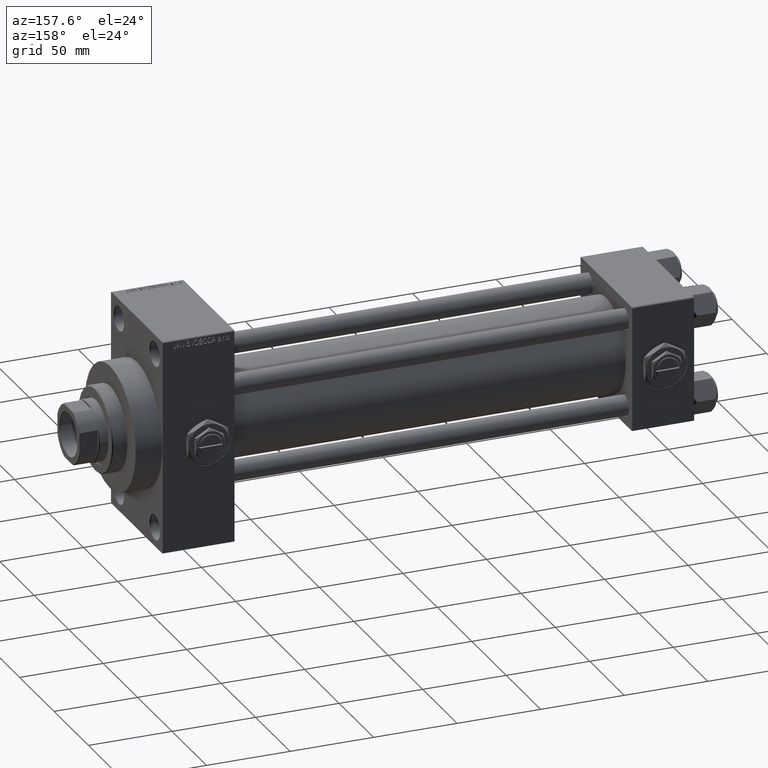
[diagram: clean part render]
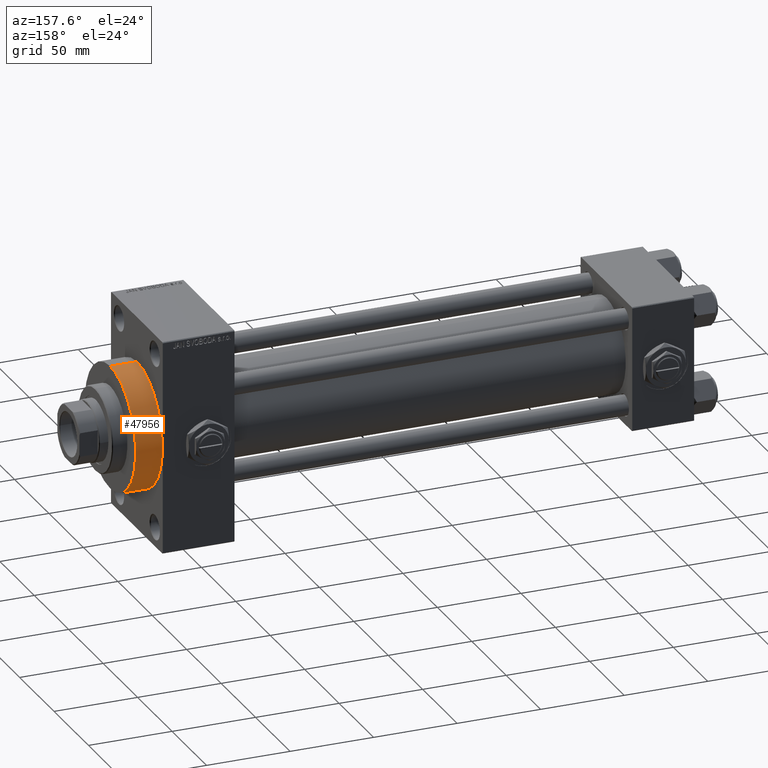
[diagram: same view with one face highlighted and labeled with its STEP entity id]
A machine part, auxiliary view. The second image highlights one B-rep face of the part: STEP entity #47956.
In plain terms, the highlighted cylindrical surface (partial cylindrical patch) has radius 37 mm, axis along (-1, -0, -0).
Its self-contained STEP definition (entity closure, byte-faithful):
#623 = CARTESIAN_POINT ( 'NONE',  ( 317.9999999999999432, 0.000000000000000000, 37.00000000000000000 ) ) ;
#669 = DIRECTION ( 'NONE',  ( 0.000000000000000000, 0.000000000000000000, 1.000000000000000000 ) ) ;
#3725 = LINE ( 'NONE', #18931, #30415 ) ;
#5466 = CARTESIAN_POINT ( 'NONE',  ( 333.9999999999999432, 0.000000000000000000, 0.000000000000000000 ) ) ;
#5966 = DIRECTION ( 'NONE',  ( 0.000000000000000000, 0.000000000000000000, -1.000000000000000000 ) ) ;
#7088 = EDGE_CURVE ( 'NONE', #36446, #28751, #3725, .T. ) ;
#9197 = DIRECTION ( 'NONE',  ( 1.000000000000000000, 0.000000000000000000, 0.000000000000000000 ) ) ;
#9267 = AXIS2_PLACEMENT_3D ( 'NONE', #44327, #13450, #5966 ) ;
#10116 = DIRECTION ( 'NONE',  ( -1.000000000000000000, -0.000000000000000000, -0.000000000000000000 ) ) ;
#12138 = CYLINDRICAL_SURFACE ( 'NONE', #17471, 37.00000000000000000 ) ;
#13450 = DIRECTION ( 'NONE',  ( 1.000000000000000000, 0.000000000000000000, 0.000000000000000000 ) ) ;
#15624 = FACE_OUTER_BOUND ( 'NONE', #29828, .T. ) ;
#16455 = CARTESIAN_POINT ( 'NONE',  ( 333.9999999999999432, 4.531193156845206793E-15, -37.00000000000000000 ) ) ;
#17338 = CARTESIAN_POINT ( 'NONE',  ( 333.9999999999999432, 0.000000000000000000, 37.00000000000000000 ) ) ;
#17471 = AXIS2_PLACEMENT_3D ( 'NONE', #34300, #42283, #669 ) ;
#17972 = AXIS2_PLACEMENT_3D ( 'NONE', #5466, #9197, #47068 ) ;
#18931 = CARTESIAN_POINT ( 'NONE',  ( 333.9999999999999432, 4.531193156845206793E-15, -37.00000000000000000 ) ) ;
#19603 = EDGE_CURVE ( 'NONE', #28751, #24722, #45036, .T. ) ;
#21749 = ORIENTED_EDGE ( 'NONE', *, *, #7088, .T. ) ;
#24722 = VERTEX_POINT ( 'NONE', #623 ) ;
#24737 = ORIENTED_EDGE ( 'NONE', *, *, #39461, .F. ) ;
#28751 = VERTEX_POINT ( 'NONE', #36834 ) ;
#29828 = EDGE_LOOP ( 'NONE', ( #24737, #21749, #31912, #47213 ) ) ;
#30415 = VECTOR ( 'NONE', #34114, 1000.000000000000000 ) ;
#31912 = ORIENTED_EDGE ( 'NONE', *, *, #19603, .T. ) ;
#34114 = DIRECTION ( 'NONE',  ( -1.000000000000000000, -0.000000000000000000, -0.000000000000000000 ) ) ;
#34300 = CARTESIAN_POINT ( 'NONE',  ( 333.9999999999999432, 0.000000000000000000, 0.000000000000000000 ) ) ;
#36446 = VERTEX_POINT ( 'NONE', #16455 ) ;
#36834 = CARTESIAN_POINT ( 'NONE',  ( 317.9999999999999432, 4.531193156845206793E-15, -37.00000000000000000 ) ) ;
#37053 = CIRCLE ( 'NONE', #17972, 37.00000000000000000 ) ;
#37601 = EDGE_CURVE ( 'NONE', #40008, #24722, #44241, .T. ) ;
#39162 = CARTESIAN_POINT ( 'NONE',  ( 333.9999999999999432, 0.000000000000000000, 37.00000000000000000 ) ) ;
#39461 = EDGE_CURVE ( 'NONE', #36446, #40008, #37053, .T. ) ;
#40008 = VERTEX_POINT ( 'NONE', #39162 ) ;
#42283 = DIRECTION ( 'NONE',  ( -1.000000000000000000, -0.000000000000000000, -0.000000000000000000 ) ) ;
#44241 = LINE ( 'NONE', #17338, #48943 ) ;
#44327 = CARTESIAN_POINT ( 'NONE',  ( 317.9999999999999432, 0.000000000000000000, 0.000000000000000000 ) ) ;
#45036 = CIRCLE ( 'NONE', #9267, 37.00000000000000000 ) ;
#47068 = DIRECTION ( 'NONE',  ( 0.000000000000000000, 0.000000000000000000, -1.000000000000000000 ) ) ;
#47213 = ORIENTED_EDGE ( 'NONE', *, *, #37601, .F. ) ;
#47956 = ADVANCED_FACE ( 'NONE', ( #15624 ), #12138, .T. ) ;
#48943 = VECTOR ( 'NONE', #10116, 1000.000000000000000 ) ;